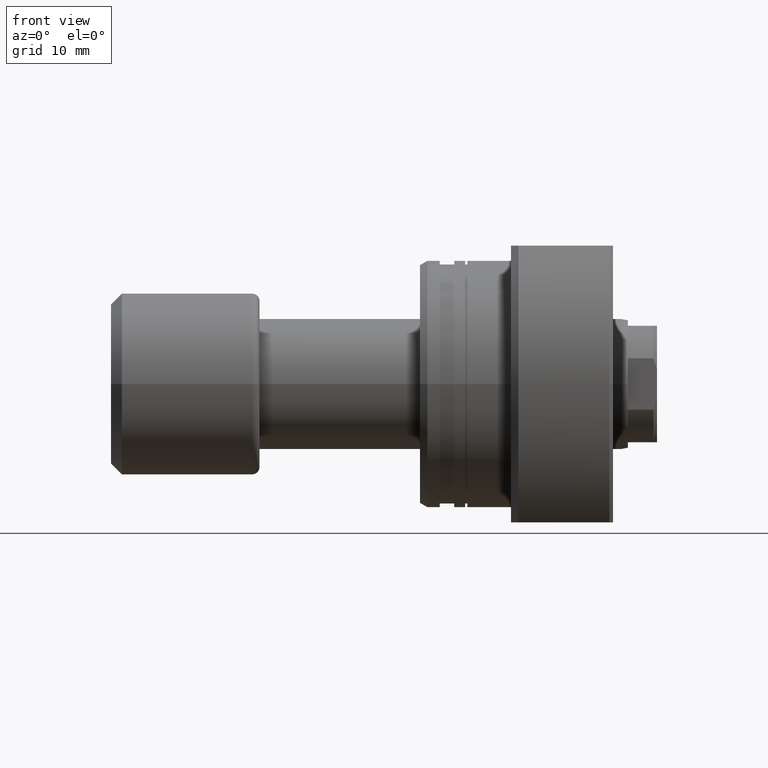
[diagram: clean part render]
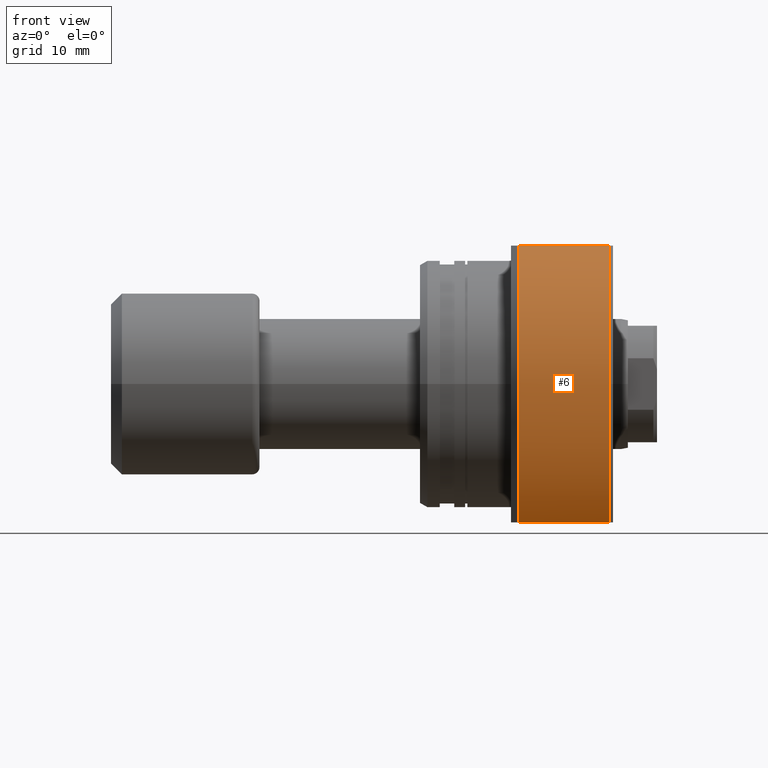
[diagram: same view with one face highlighted and labeled with its STEP entity id]
A machine part, front view. The second image highlights one B-rep face of the part: STEP entity #6.
In plain terms, the highlighted cylindrical surface (partial cylindrical patch) has radius 27.5 mm, axis along (1, 0, 0).
Its self-contained STEP definition (entity closure, byte-faithful):
#6 = ADVANCED_FACE ( 'NONE', ( #2618 ), #631, .T. ) ;
#40 = DIRECTION ( 'NONE',  ( 0.000000000000000000, 1.000000000000000000, 0.000000000000000000 ) ) ;
#47 = EDGE_CURVE ( 'NONE', #1077, #1951, #863, .T. ) ;
#128 = AXIS2_PLACEMENT_3D ( 'NONE', #950, #727, #1714 ) ;
#135 = EDGE_CURVE ( 'NONE', #423, #530, #342, .T. ) ;
#310 = CIRCLE ( 'NONE', #2385, 27.49999999999991473 ) ;
#342 = CIRCLE ( 'NONE', #128, 27.49999999999991473 ) ;
#423 = VERTEX_POINT ( 'NONE', #1052 ) ;
#448 = CIRCLE ( 'NONE', #2525, 27.49999999999991473 ) ;
#487 = CARTESIAN_POINT ( 'NONE',  ( 13.49999999999998757, -19.88089535207056358, -19.00000000000001066 ) ) ;
#523 = DIRECTION ( 'NONE',  ( 1.000000000000000000, 9.242617352055502386E-18, -0.000000000000000000 ) ) ;
#530 = VERTEX_POINT ( 'NONE', #2546 ) ;
#631 = CYLINDRICAL_SURFACE ( 'NONE', #755, 27.49999999999991473 ) ;
#701 = LINE ( 'NONE', #1166, #2949 ) ;
#727 = DIRECTION ( 'NONE',  ( 1.000000000000000000, 9.242617352055502386E-18, -0.000000000000000000 ) ) ;
#755 = AXIS2_PLACEMENT_3D ( 'NONE', #2318, #1106, #2841 ) ;
#800 = EDGE_CURVE ( 'NONE', #1521, #423, #701, .T. ) ;
#863 = LINE ( 'NONE', #3061, #2683 ) ;
#907 = CARTESIAN_POINT ( 'NONE',  ( 13.49999999999998757, -19.88089535207056002, 19.00000000000001421 ) ) ;
#922 = DIRECTION ( 'NONE',  ( 1.000000000000000000, -2.886466111666351885E-14, -0.000000000000000000 ) ) ;
#950 = CARTESIAN_POINT ( 'NONE',  ( 26.00000000000008882, 2.403080511534438786E-16, 0.000000000000000000 ) ) ;
#1052 = CARTESIAN_POINT ( 'NONE',  ( 26.00000000000007461, -19.88089535207091885, 19.00000000000001421 ) ) ;
#1060 = EDGE_CURVE ( 'NONE', #530, #1951, #448, .T. ) ;
#1077 = VERTEX_POINT ( 'NONE', #487 ) ;
#1106 = DIRECTION ( 'NONE',  ( 1.000000000000000000, 9.242617352055502386E-18, -0.000000000000000000 ) ) ;
#1166 = CARTESIAN_POINT ( 'NONE',  ( -1.360023205165816762E-12, -19.88089535207016922, 19.00000000000001421 ) ) ;
#1291 = ORIENTED_EDGE ( 'NONE', *, *, #1060, .F. ) ;
#1319 = CARTESIAN_POINT ( 'NONE',  ( 26.00000000000007461, -19.88089535207092240, -19.00000000000001066 ) ) ;
#1493 = ORIENTED_EDGE ( 'NONE', *, *, #2238, .T. ) ;
#1521 = VERTEX_POINT ( 'NONE', #907 ) ;
#1592 = ORIENTED_EDGE ( 'NONE', *, *, #135, .F. ) ;
#1714 = DIRECTION ( 'NONE',  ( 0.000000000000000000, 1.000000000000000000, 0.000000000000000000 ) ) ;
#1951 = VERTEX_POINT ( 'NONE', #1319 ) ;
#2012 = ORIENTED_EDGE ( 'NONE', *, *, #47, .T. ) ;
#2037 = CARTESIAN_POINT ( 'NONE',  ( 26.00000000000008882, 2.403080511534438786E-16, 0.000000000000000000 ) ) ;
#2048 = EDGE_LOOP ( 'NONE', ( #2463, #1493, #2012, #1291, #1592 ) ) ;
#2238 = EDGE_CURVE ( 'NONE', #1521, #1077, #310, .T. ) ;
#2301 = DIRECTION ( 'NONE',  ( 1.000000000000000000, 9.242617352055502386E-18, -0.000000000000000000 ) ) ;
#2316 = DIRECTION ( 'NONE',  ( 0.000000000000000000, 1.000000000000000000, 0.000000000000000000 ) ) ;
#2318 = CARTESIAN_POINT ( 'NONE',  ( 26.50000000000000711, 2.449293598294708880E-16, 0.000000000000000000 ) ) ;
#2347 = CARTESIAN_POINT ( 'NONE',  ( 13.49999999999999112, 1.247753342527491952E-16, 0.000000000000000000 ) ) ;
#2385 = AXIS2_PLACEMENT_3D ( 'NONE', #2347, #2301, #2316 ) ;
#2463 = ORIENTED_EDGE ( 'NONE', *, *, #800, .F. ) ;
#2525 = AXIS2_PLACEMENT_3D ( 'NONE', #2037, #523, #40 ) ;
#2546 = CARTESIAN_POINT ( 'NONE',  ( 26.00000000000008882, -27.49999999999991473, 0.000000000000000000 ) ) ;
#2567 = DIRECTION ( 'NONE',  ( 1.000000000000000000, -2.886466111666351885E-14, -0.000000000000000000 ) ) ;
#2618 = FACE_OUTER_BOUND ( 'NONE', #2048, .T. ) ;
#2683 = VECTOR ( 'NONE', #2567, 1000.000000000000000 ) ;
#2841 = DIRECTION ( 'NONE',  ( 0.000000000000000000, 1.000000000000000000, 0.000000000000000000 ) ) ;
#2949 = VECTOR ( 'NONE', #922, 1000.000000000000000 ) ;
#3061 = CARTESIAN_POINT ( 'NONE',  ( -1.360023205165816762E-12, -19.88089535207017278, -19.00000000000001066 ) ) ;